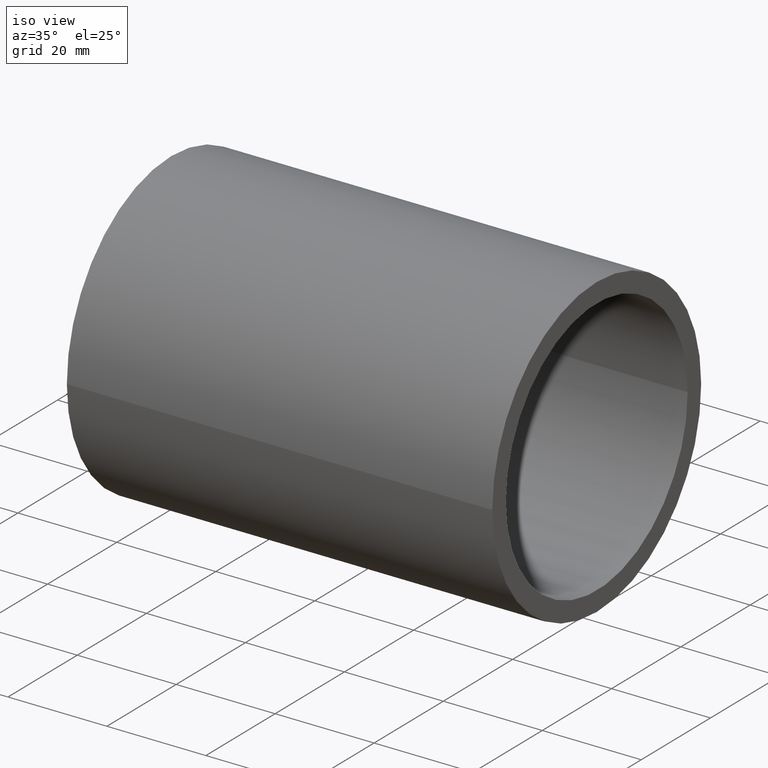
[diagram: clean part render]
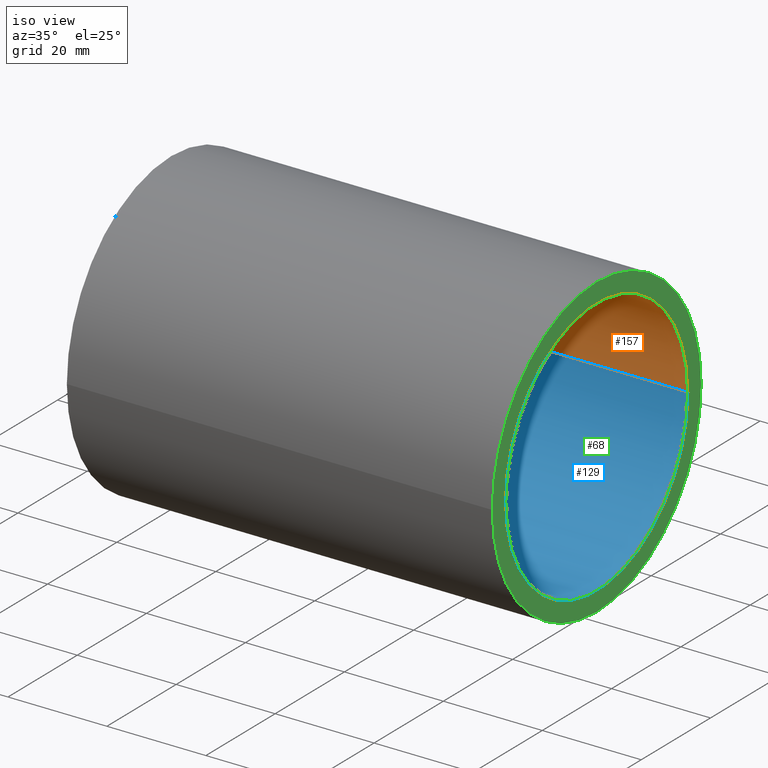
[diagram: same view with three faces highlighted in distinct colors, each labeled with its STEP entity id]
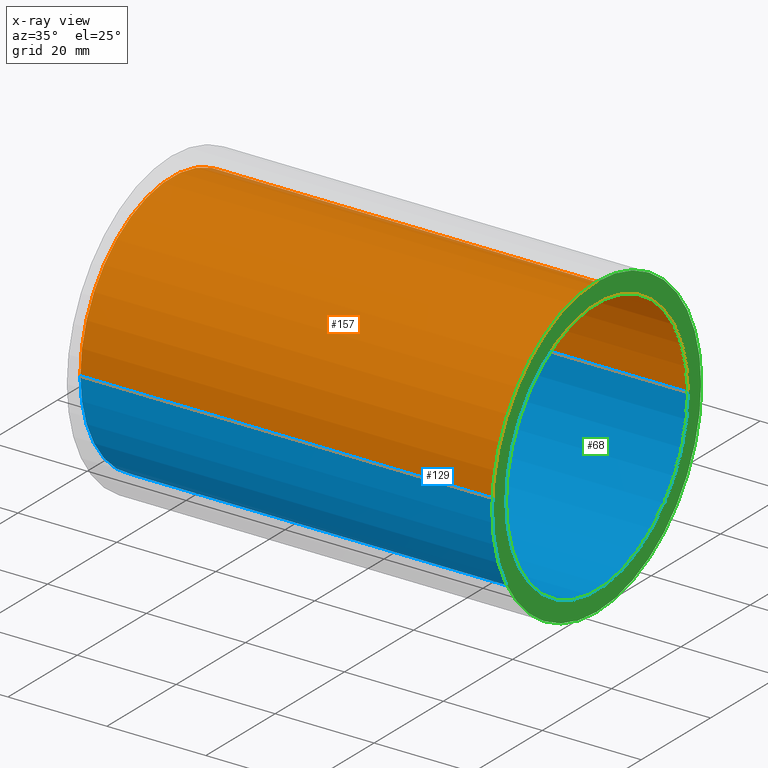
[diagram: x-ray of the same camera — body ghosted, the three highlighted faces saturated]
A machine part, iso view with three faces highlighted in distinct colors.
The next image is the same camera in x-ray (body ghosted, the three faces saturated) — at least one of them is partly hidden behind the body in this view.
Their STEP definitions:

[orange] entity #157 — the highlighted cylindrical surface (partial cylindrical patch) has radius 26.25 mm, axis along (1, 0, -0).
#2 = ORIENTED_EDGE ( 'NONE', *, *, #148, .F. ) ;
#3 = EDGE_CURVE ( 'NONE', #152, #136, #21, .T. ) ;
#9 = DIRECTION ( 'NONE',  ( 2.643388153869420311E-16, -1.000000000000000000, 0.000000000000000000 ) ) ;
#10 = CYLINDRICAL_SURFACE ( 'NONE', #221, 26.25000000000000000 ) ;
#20 = AXIS2_PLACEMENT_3D ( 'NONE', #103, #187, #9 ) ;
#21 = LINE ( 'NONE', #236, #121 ) ;
#28 = DIRECTION ( 'NONE',  ( -1.000000000000000000, -3.061616997868382648E-16, 0.000000000000000000 ) ) ;
#53 = ORIENTED_EDGE ( 'NONE', *, *, #188, .F. ) ;
#54 = CIRCLE ( 'NONE', #242, 26.25000000000000000 ) ;
#55 = DIRECTION ( 'NONE',  ( 1.000000000000000000, 3.061616997868382648E-16, -0.000000000000000000 ) ) ;
#63 = DIRECTION ( 'NONE',  ( 1.000000000000000000, 3.061616997868382648E-16, -0.000000000000000000 ) ) ;
#64 = CARTESIAN_POINT ( 'NONE',  ( -43.00000000000000000, 26.24999999999998224, 0.000000000000000000 ) ) ;
#75 = ORIENTED_EDGE ( 'NONE', *, *, #90, .T. ) ;
#86 = FACE_OUTER_BOUND ( 'NONE', #98, .T. ) ;
#90 = EDGE_CURVE ( 'NONE', #118, #152, #241, .T. ) ;
#98 = EDGE_LOOP ( 'NONE', ( #2, #75, #214, #53 ) ) ;
#103 = CARTESIAN_POINT ( 'NONE',  ( -43.00000000000000000, -1.665519646840400224E-14, 0.000000000000000000 ) ) ;
#109 = DIRECTION ( 'NONE',  ( 1.000000000000000000, 3.061616997868382648E-16, -0.000000000000000000 ) ) ;
#118 = VERTEX_POINT ( 'NONE', #147 ) ;
#121 = VECTOR ( 'NONE', #55, 1000.000000000000000 ) ;
#136 = VERTEX_POINT ( 'NONE', #190 ) ;
#139 = VECTOR ( 'NONE', #109, 1000.000000000000000 ) ;
#145 = LINE ( 'NONE', #224, #139 ) ;
#147 = CARTESIAN_POINT ( 'NONE',  ( -42.99999999999999289, -26.25000000000001421, 3.214697847761803556E-15 ) ) ;
#148 = EDGE_CURVE ( 'NONE', #118, #179, #145, .T. ) ;
#149 = CARTESIAN_POINT ( 'NONE',  ( 43.00000000000000000, -26.24999999999998934, 3.214697847761801978E-15 ) ) ;
#152 = VERTEX_POINT ( 'NONE', #64 ) ;
#157 = ADVANCED_FACE ( 'NONE', ( #86 ), #10, .F. ) ;
#169 = DIRECTION ( 'NONE',  ( 2.643388153869420311E-16, -1.000000000000000000, 0.000000000000000000 ) ) ;
#170 = CARTESIAN_POINT ( 'NONE',  ( 43.00000000000000000, 9.674709713264084593E-15, 0.000000000000000000 ) ) ;
#179 = VERTEX_POINT ( 'NONE', #149 ) ;
#187 = DIRECTION ( 'NONE',  ( -1.000000000000000000, -3.061616997868382648E-16, 0.000000000000000000 ) ) ;
#188 = EDGE_CURVE ( 'NONE', #179, #136, #54, .T. ) ;
#190 = CARTESIAN_POINT ( 'NONE',  ( 42.99999999999999289, 26.25000000000000711, 0.000000000000000000 ) ) ;
#207 = DIRECTION ( 'NONE',  ( -2.643388153869420311E-16, 1.000000000000000000, 0.000000000000000000 ) ) ;
#214 = ORIENTED_EDGE ( 'NONE', *, *, #3, .T. ) ;
#221 = AXIS2_PLACEMENT_3D ( 'NONE', #222, #63, #207 ) ;
#222 = CARTESIAN_POINT ( 'NONE',  ( -43.00000000000000000, -1.665519646840400224E-14, 0.000000000000000000 ) ) ;
#224 = CARTESIAN_POINT ( 'NONE',  ( -42.99999999999999289, -26.25000000000001776, 3.214697847761801978E-15 ) ) ;
#236 = CARTESIAN_POINT ( 'NONE',  ( -43.00000000000000000, 26.24999999999998224, 0.000000000000000000 ) ) ;
#241 = CIRCLE ( 'NONE', #20, 26.25000000000000000 ) ;
#242 = AXIS2_PLACEMENT_3D ( 'NONE', #170, #28, #169 ) ;

[blue] entity #129 — the highlighted cylindrical surface (partial cylindrical patch) has radius 26.25 mm, axis along (1, 0, -0).
#3 = EDGE_CURVE ( 'NONE', #152, #136, #21, .T. ) ;
#8 = ORIENTED_EDGE ( 'NONE', *, *, #3, .F. ) ;
#13 = CARTESIAN_POINT ( 'NONE',  ( -43.00000000000000000, -1.665519646840400224E-14, 0.000000000000000000 ) ) ;
#15 = AXIS2_PLACEMENT_3D ( 'NONE', #13, #107, #127 ) ;
#19 = ORIENTED_EDGE ( 'NONE', *, *, #148, .T. ) ;
#21 = LINE ( 'NONE', #236, #121 ) ;
#41 = CARTESIAN_POINT ( 'NONE',  ( 43.00000000000000000, 9.674709713264084593E-15, 0.000000000000000000 ) ) ;
#44 = EDGE_CURVE ( 'NONE', #152, #118, #172, .T. ) ;
#52 = DIRECTION ( 'NONE',  ( 2.643388153869420311E-16, -1.000000000000000000, 0.000000000000000000 ) ) ;
#55 = DIRECTION ( 'NONE',  ( 1.000000000000000000, 3.061616997868382648E-16, -0.000000000000000000 ) ) ;
#58 = AXIS2_PLACEMENT_3D ( 'NONE', #199, #201, #52 ) ;
#64 = CARTESIAN_POINT ( 'NONE',  ( -43.00000000000000000, 26.24999999999998224, 0.000000000000000000 ) ) ;
#77 = DIRECTION ( 'NONE',  ( 2.643388153869420311E-16, -1.000000000000000000, 0.000000000000000000 ) ) ;
#79 = EDGE_CURVE ( 'NONE', #136, #179, #182, .T. ) ;
#97 = AXIS2_PLACEMENT_3D ( 'NONE', #41, #186, #77 ) ;
#107 = DIRECTION ( 'NONE',  ( 1.000000000000000000, 3.061616997868382648E-16, -0.000000000000000000 ) ) ;
#109 = DIRECTION ( 'NONE',  ( 1.000000000000000000, 3.061616997868382648E-16, -0.000000000000000000 ) ) ;
#118 = VERTEX_POINT ( 'NONE', #147 ) ;
#121 = VECTOR ( 'NONE', #55, 1000.000000000000000 ) ;
#122 = EDGE_LOOP ( 'NONE', ( #159, #19, #235, #8 ) ) ;
#127 = DIRECTION ( 'NONE',  ( -2.643388153869420311E-16, 1.000000000000000000, 0.000000000000000000 ) ) ;
#129 = ADVANCED_FACE ( 'NONE', ( #192 ), #244, .F. ) ;
#136 = VERTEX_POINT ( 'NONE', #190 ) ;
#139 = VECTOR ( 'NONE', #109, 1000.000000000000000 ) ;
#145 = LINE ( 'NONE', #224, #139 ) ;
#147 = CARTESIAN_POINT ( 'NONE',  ( -42.99999999999999289, -26.25000000000001421, 3.214697847761803556E-15 ) ) ;
#148 = EDGE_CURVE ( 'NONE', #118, #179, #145, .T. ) ;
#149 = CARTESIAN_POINT ( 'NONE',  ( 43.00000000000000000, -26.24999999999998934, 3.214697847761801978E-15 ) ) ;
#152 = VERTEX_POINT ( 'NONE', #64 ) ;
#159 = ORIENTED_EDGE ( 'NONE', *, *, #44, .T. ) ;
#172 = CIRCLE ( 'NONE', #58, 26.25000000000000000 ) ;
#179 = VERTEX_POINT ( 'NONE', #149 ) ;
#182 = CIRCLE ( 'NONE', #97, 26.25000000000000000 ) ;
#186 = DIRECTION ( 'NONE',  ( -1.000000000000000000, -3.061616997868382648E-16, 0.000000000000000000 ) ) ;
#190 = CARTESIAN_POINT ( 'NONE',  ( 42.99999999999999289, 26.25000000000000711, 0.000000000000000000 ) ) ;
#192 = FACE_OUTER_BOUND ( 'NONE', #122, .T. ) ;
#199 = CARTESIAN_POINT ( 'NONE',  ( -43.00000000000000000, -1.665519646840400224E-14, 0.000000000000000000 ) ) ;
#201 = DIRECTION ( 'NONE',  ( -1.000000000000000000, -3.061616997868382648E-16, 0.000000000000000000 ) ) ;
#224 = CARTESIAN_POINT ( 'NONE',  ( -42.99999999999999289, -26.25000000000001776, 3.214697847761801978E-15 ) ) ;
#235 = ORIENTED_EDGE ( 'NONE', *, *, #79, .F. ) ;
#236 = CARTESIAN_POINT ( 'NONE',  ( -43.00000000000000000, 26.24999999999998224, 0.000000000000000000 ) ) ;
#244 = CYLINDRICAL_SURFACE ( 'NONE', #15, 26.25000000000000000 ) ;

[green] entity #68 — the highlighted planar face has unit normal (-1, -0, 0).
#22 = VERTEX_POINT ( 'NONE', #160 ) ;
#23 = CARTESIAN_POINT ( 'NONE',  ( 43.00000000000000000, 9.674709713264084593E-15, 0.000000000000000000 ) ) ;
#25 = ORIENTED_EDGE ( 'NONE', *, *, #57, .F. ) ;
#28 = DIRECTION ( 'NONE',  ( -1.000000000000000000, -3.061616997868382648E-16, 0.000000000000000000 ) ) ;
#37 = FACE_BOUND ( 'NONE', #91, .T. ) ;
#41 = CARTESIAN_POINT ( 'NONE',  ( 43.00000000000000000, 9.674709713264084593E-15, 0.000000000000000000 ) ) ;
#45 = CARTESIAN_POINT ( 'NONE',  ( 43.00000000000000000, -30.14999999999998792, 3.692310099429270397E-15 ) ) ;
#54 = CIRCLE ( 'NONE', #242, 26.25000000000000000 ) ;
#56 = FACE_OUTER_BOUND ( 'NONE', #105, .T. ) ;
#57 = EDGE_CURVE ( 'NONE', #22, #133, #87, .T. ) ;
#68 = ADVANCED_FACE ( 'NONE', ( #37, #56 ), #123, .F. ) ;
#77 = DIRECTION ( 'NONE',  ( 2.643388153869420311E-16, -1.000000000000000000, 0.000000000000000000 ) ) ;
#79 = EDGE_CURVE ( 'NONE', #136, #179, #182, .T. ) ;
#87 = CIRCLE ( 'NONE', #108, 30.14999999999999858 ) ;
#91 = EDGE_LOOP ( 'NONE', ( #125, #218 ) ) ;
#93 = CIRCLE ( 'NONE', #144, 30.14999999999999858 ) ;
#97 = AXIS2_PLACEMENT_3D ( 'NONE', #41, #186, #77 ) ;
#102 = DIRECTION ( 'NONE',  ( -1.000000000000000000, -3.061616997868382648E-16, 0.000000000000000000 ) ) ;
#105 = EDGE_LOOP ( 'NONE', ( #25, #181 ) ) ;
#108 = AXIS2_PLACEMENT_3D ( 'NONE', #137, #215, #203 ) ;
#113 = AXIS2_PLACEMENT_3D ( 'NONE', #23, #102, #202 ) ;
#123 = PLANE ( 'NONE',  #113 ) ;
#125 = ORIENTED_EDGE ( 'NONE', *, *, #79, .T. ) ;
#133 = VERTEX_POINT ( 'NONE', #45 ) ;
#136 = VERTEX_POINT ( 'NONE', #190 ) ;
#137 = CARTESIAN_POINT ( 'NONE',  ( 43.00000000000000000, 9.674709713264084593E-15, 0.000000000000000000 ) ) ;
#144 = AXIS2_PLACEMENT_3D ( 'NONE', #191, #243, #208 ) ;
#149 = CARTESIAN_POINT ( 'NONE',  ( 43.00000000000000000, -26.24999999999998934, 3.214697847761801978E-15 ) ) ;
#160 = CARTESIAN_POINT ( 'NONE',  ( 42.99999999999999289, 30.15000000000000924, 0.000000000000000000 ) ) ;
#169 = DIRECTION ( 'NONE',  ( 2.643388153869420311E-16, -1.000000000000000000, 0.000000000000000000 ) ) ;
#170 = CARTESIAN_POINT ( 'NONE',  ( 43.00000000000000000, 9.674709713264084593E-15, 0.000000000000000000 ) ) ;
#179 = VERTEX_POINT ( 'NONE', #149 ) ;
#181 = ORIENTED_EDGE ( 'NONE', *, *, #204, .F. ) ;
#182 = CIRCLE ( 'NONE', #97, 26.25000000000000000 ) ;
#186 = DIRECTION ( 'NONE',  ( -1.000000000000000000, -3.061616997868382648E-16, 0.000000000000000000 ) ) ;
#188 = EDGE_CURVE ( 'NONE', #179, #136, #54, .T. ) ;
#190 = CARTESIAN_POINT ( 'NONE',  ( 42.99999999999999289, 26.25000000000000711, 0.000000000000000000 ) ) ;
#191 = CARTESIAN_POINT ( 'NONE',  ( 43.00000000000000000, 9.674709713264084593E-15, 0.000000000000000000 ) ) ;
#202 = DIRECTION ( 'NONE',  ( 3.061616997868382648E-16, -1.000000000000000000, 0.000000000000000000 ) ) ;
#203 = DIRECTION ( 'NONE',  ( 2.301457347896261609E-16, -1.000000000000000000, 0.000000000000000000 ) ) ;
#204 = EDGE_CURVE ( 'NONE', #133, #22, #93, .T. ) ;
#208 = DIRECTION ( 'NONE',  ( 2.301457347896261609E-16, -1.000000000000000000, 0.000000000000000000 ) ) ;
#215 = DIRECTION ( 'NONE',  ( -1.000000000000000000, -3.061616997868382648E-16, 0.000000000000000000 ) ) ;
#218 = ORIENTED_EDGE ( 'NONE', *, *, #188, .T. ) ;
#242 = AXIS2_PLACEMENT_3D ( 'NONE', #170, #28, #169 ) ;
#243 = DIRECTION ( 'NONE',  ( -1.000000000000000000, -3.061616997868382648E-16, 0.000000000000000000 ) ) ;